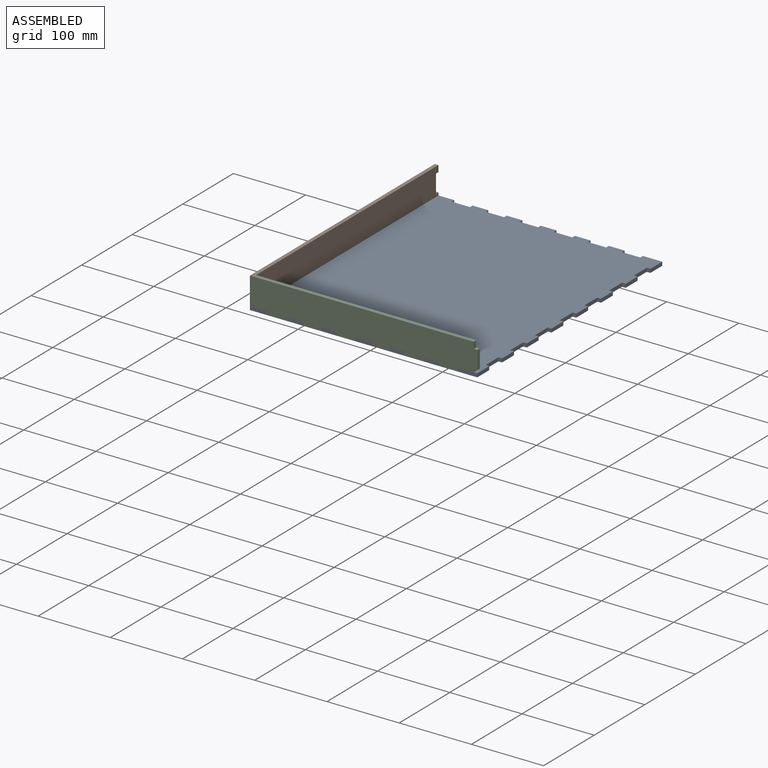
[diagram: assembled view]
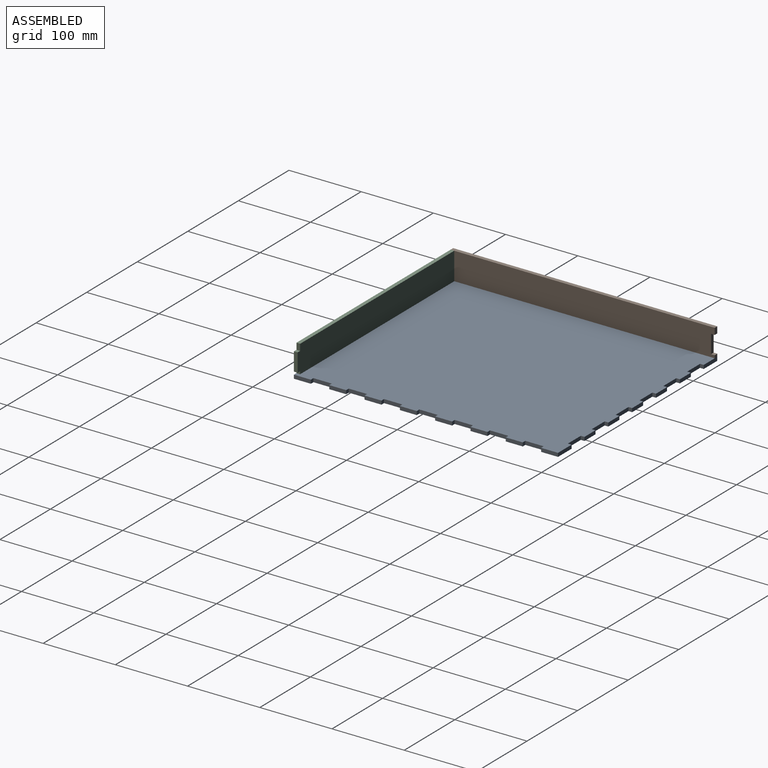
[diagram: assembled view, second angle]
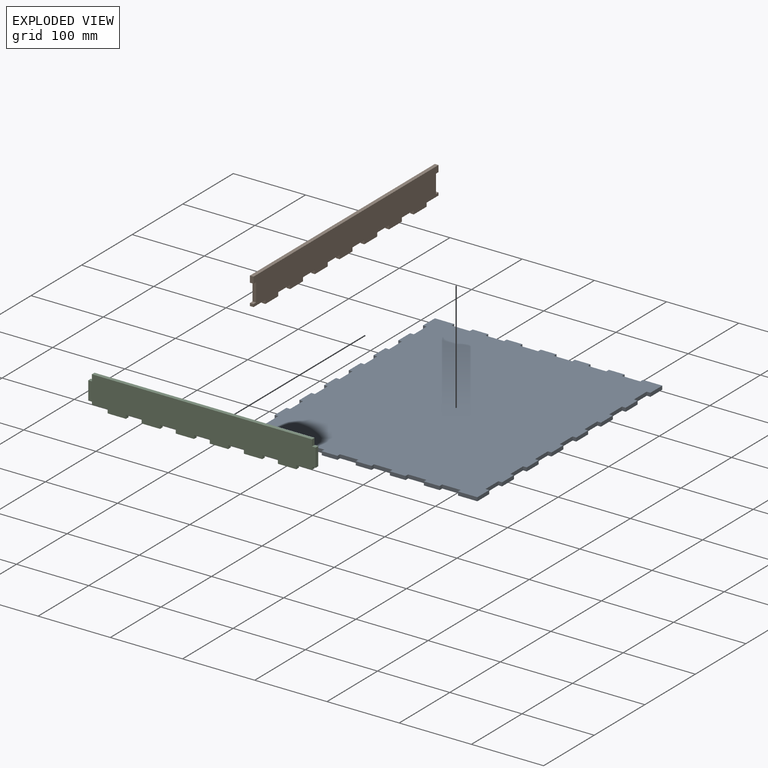
[diagram: exploded view]
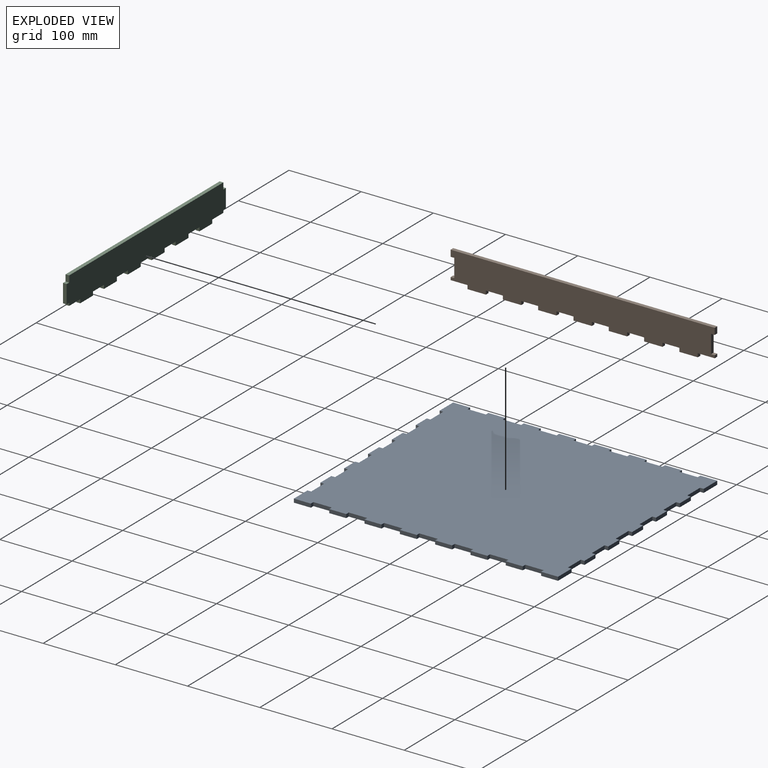
[diagram: exploded view, second angle]
ASSEMBLY  parts=3 mates=2
PART A: 110 faces, bbox 315x365.8x5.1 mm
  f0: plane 23.5x5.08mm, normal (-1,0,0), area 119.4mm2, adj f2,f3,f31,f109
  f1: plane 23.5x5.08mm, normal (1,0,0), area 119.4mm2, adj f2,f3,f27,f106
  f2: plane 365.76x314.96mm, normal (0,0,1), area 111844.9mm2, adj f0,f1,f4,f5,f6,f7,f8,f9
  f3: plane 365.76x314.96mm, normal (0,0,-1), area 111844.9mm2, adj f0,f1,f4,f5,f6,f7,f8,f9
  f4: plane 23.5x5.08mm, normal (-1,0,0), area 119.4mm2, adj f2,f3,f103,f107
  f5: plane 23.5x5.08mm, normal (1,0,0), area 119.4mm2, adj f2,f3,f100,f105
  f6: plane 23.5x5.08mm, normal (-1,0,0), area 119.4mm2, adj f2,f3,f97,f101
  f7: plane 23.5x5.08mm, normal (1,0,0), area 119.4mm2, adj f2,f3,f94,f99
  f8: plane 23.5x5.08mm, normal (-1,0,0), area 119.4mm2, adj f2,f3,f91,f95
  f9: plane 23.5x5.08mm, normal (1,0,0), area 119.4mm2, adj f2,f3,f88,f93
  f10: plane 23.5x5.08mm, normal (-1,0,0), area 119.4mm2, adj f2,f3,f85,f89
  f11: plane 23.5x5.08mm, normal (1,0,0), area 119.4mm2, adj f2,f3,f82,f87
  f12: plane 23.5x5.08mm, normal (-1,0,0), area 119.4mm2, adj f2,f3,f79,f83
  f13: plane 23.5x5.08mm, normal (1,0,0), area 119.4mm2, adj f2,f3,f76,f81
  f14: plane 23.5x5.08mm, normal (-1,0,0), area 119.4mm2, adj f2,f3,f73,f77
  f15: plane 23.5x5.08mm, normal (1,0,0), area 119.4mm2, adj f2,f3,f70,f75
  f16: plane 21.77x5.08mm, normal (0,-1,0), area 110.6mm2, adj f2,f3,f60,f67
  f17: plane 21.77x5.08mm, normal (0,1,0), area 110.6mm2, adj f2,f3,f56,f64
  f18: plane 21.77x5.08mm, normal (0,-1,0), area 110.6mm2, adj f2,f3,f54,f61
  f19: plane 21.77x5.08mm, normal (0,1,0), area 110.6mm2, adj f2,f3,f50,f58
  f20: plane 21.77x5.08mm, normal (0,-1,0), area 110.6mm2, adj f2,f3,f48,f55
  f21: plane 21.77x5.08mm, normal (0,1,0), area 110.6mm2, adj f2,f3,f44,f52
  f22: plane 21.77x5.08mm, normal (0,-1,0), area 110.6mm2, adj f2,f3,f42,f49
  f23: plane 21.77x5.08mm, normal (0,1,0), area 110.6mm2, adj f2,f3,f38,f46
  f24: plane 21.77x5.08mm, normal (0,-1,0), area 110.6mm2, adj f2,f3,f36,f43
  f25: plane 21.77x5.08mm, normal (0,1,0), area 110.6mm2, adj f2,f3,f32,f40
  f26: plane 26.85x5.08mm, normal (0,-1,0), area 136.4mm2, adj f2,f3,f30,f37
  f27: plane 26.85x5.08mm, normal (0,1,0), area 136.4mm2, adj f1,f2,f3,f34
  f28: plane 23.5x5.08mm, normal (-1,0,0), area 119.4mm2, adj f2,f3,f29,f71
  f29: plane 26.85x5.08mm, normal (0,-1,0), area 136.4mm2, adj f2,f3,f28,f66
  f30: plane 23.5x5.08mm, normal (1,0,0), area 119.4mm2, adj f2,f3,f26,f69
  f31: plane 26.85x5.08mm, normal (0,1,0), area 136.4mm2, adj f0,f2,f3,f62
  f32: plane 5.08x5.08mm, normal (1,0,0), area 25.8mm2, adj f2,f3,f25,f33
  f33: plane 25.4x5.08mm, normal (0,1,0), area 129mm2, adj f2,f3,f32,f34
  f34: plane 5.08x5.08mm, normal (-1,0,0), area 25.8mm2, adj f2,f3,f27,f33
  f35: plane 25.4x5.08mm, normal (0,-1,0), area 129mm2, adj f2,f3,f36,f37
  f36: plane 5.08x5.08mm, normal (1,0,0), area 25.8mm2, adj f2,f3,f24,f35
  f37: plane 5.08x5.08mm, normal (-1,0,0), area 25.8mm2, adj f2,f3,f26,f35
  f38: plane 5.08x5.08mm, normal (1,0,0), area 25.8mm2, adj f2,f3,f23,f39
  f39: plane 25.4x5.08mm, normal (0,1,0), area 129mm2, adj f2,f3,f38,f40
  f40: plane 5.08x5.08mm, normal (-1,0,0), area 25.8mm2, adj f2,f3,f25,f39
  f41: plane 25.4x5.08mm, normal (0,-1,0), area 129mm2, adj f2,f3,f42,f43
  f42: plane 5.08x5.08mm, normal (1,0,0), area 25.8mm2, adj f2,f3,f22,f41
  f43: plane 5.08x5.08mm, normal (-1,0,0), area 25.8mm2, adj f2,f3,f24,f41
  f44: plane 5.08x5.08mm, normal (1,0,0), area 25.8mm2, adj f2,f3,f21,f45
  f45: plane 25.4x5.08mm, normal (0,1,0), area 129mm2, adj f2,f3,f44,f46
  f46: plane 5.08x5.08mm, normal (-1,0,0), area 25.8mm2, adj f2,f3,f23,f45
  f47: plane 25.4x5.08mm, normal (0,-1,0), area 129mm2, adj f2,f3,f48,f49
  f48: plane 5.08x5.08mm, normal (1,0,0), area 25.8mm2, adj f2,f3,f20,f47
  f49: plane 5.08x5.08mm, normal (-1,0,0), area 25.8mm2, adj f2,f3,f22,f47
  f50: plane 5.08x5.08mm, normal (1,0,0), area 25.8mm2, adj f2,f3,f19,f51
  f51: plane 25.4x5.08mm, normal (0,1,0), area 129mm2, adj f2,f3,f50,f52
  f52: plane 5.08x5.08mm, normal (-1,0,0), area 25.8mm2, adj f2,f3,f21,f51
  f53: plane 25.4x5.08mm, normal (0,-1,0), area 129mm2, adj f2,f3,f54,f55
  f54: plane 5.08x5.08mm, normal (1,0,0), area 25.8mm2, adj f2,f3,f18,f53
  f55: plane 5.08x5.08mm, normal (-1,0,0), area 25.8mm2, adj f2,f3,f20,f53
  f56: plane 5.08x5.08mm, normal (1,0,0), area 25.8mm2, adj f2,f3,f17,f57
  f57: plane 25.4x5.08mm, normal (0,1,0), area 129mm2, adj f2,f3,f56,f58
  f58: plane 5.08x5.08mm, normal (-1,0,0), area 25.8mm2, adj f2,f3,f19,f57
  f59: plane 25.4x5.08mm, normal (0,-1,0), area 129mm2, adj f2,f3,f60,f61
  f60: plane 5.08x5.08mm, normal (1,0,0), area 25.8mm2, adj f2,f3,f16,f59
  f61: plane 5.08x5.08mm, normal (-1,0,0), area 25.8mm2, adj f2,f3,f18,f59
  f62: plane 5.08x5.08mm, normal (1,0,0), area 25.8mm2, adj f2,f3,f31,f63
  f63: plane 25.4x5.08mm, normal (0,1,0), area 129mm2, adj f2,f3,f62,f64
  f64: plane 5.08x5.08mm, normal (-1,0,0), area 25.8mm2, adj f2,f3,f17,f63
  f65: plane 25.4x5.08mm, normal (0,-1,0), area 129mm2, adj f2,f3,f66,f67
  f66: plane 5.08x5.08mm, normal (1,0,0), area 25.8mm2, adj f2,f3,f29,f65
  f67: plane 5.08x5.08mm, normal (-1,0,0), area 25.8mm2, adj f2,f3,f16,f65
  f68: plane 25.4x5.08mm, normal (1,0,0), area 129mm2, adj f2,f3,f69,f70
  f69: plane 5.08x5.08mm, normal (0,1,0), area 25.8mm2, adj f2,f3,f30,f68
  f70: plane 5.08x5.08mm, normal (0,-1,0), area 25.8mm2, adj f2,f3,f15,f68
  f71: plane 5.08x5.08mm, normal (0,1,0), area 25.8mm2, adj f2,f3,f28,f72
  f72: plane 25.4x5.08mm, normal (-1,0,0), area 129mm2, adj f2,f3,f71,f73
  f73: plane 5.08x5.08mm, normal (0,-1,0), area 25.8mm2, adj f2,f3,f14,f72
  f74: plane 25.4x5.08mm, normal (1,0,0), area 129mm2, adj f2,f3,f75,f76
  f75: plane 5.08x5.08mm, normal (0,1,0), area 25.8mm2, adj f2,f3,f15,f74
  f76: plane 5.08x5.08mm, normal (0,-1,0), area 25.8mm2, adj f2,f3,f13,f74
  f77: plane 5.08x5.08mm, normal (0,1,0), area 25.8mm2, adj f2,f3,f14,f78
  f78: plane 25.4x5.08mm, normal (-1,0,0), area 129mm2, adj f2,f3,f77,f79
  f79: plane 5.08x5.08mm, normal (0,-1,0), area 25.8mm2, adj f2,f3,f12,f78
  f80: plane 25.4x5.08mm, normal (1,0,0), area 129mm2, adj f2,f3,f81,f82
  f81: plane 5.08x5.08mm, normal (0,1,0), area 25.8mm2, adj f2,f3,f13,f80
  f82: plane 5.08x5.08mm, normal (0,-1,0), area 25.8mm2, adj f2,f3,f11,f80
  f83: plane 5.08x5.08mm, normal (0,1,0), area 25.8mm2, adj f2,f3,f12,f84
  f84: plane 25.4x5.08mm, normal (-1,0,0), area 129mm2, adj f2,f3,f83,f85
  f85: plane 5.08x5.08mm, normal (0,-1,0), area 25.8mm2, adj f2,f3,f10,f84
  f86: plane 25.4x5.08mm, normal (1,0,0), area 129mm2, adj f2,f3,f87,f88
  f87: plane 5.08x5.08mm, normal (0,1,0), area 25.8mm2, adj f2,f3,f11,f86
  f88: plane 5.08x5.08mm, normal (0,-1,0), area 25.8mm2, adj f2,f3,f9,f86
  f89: plane 5.08x5.08mm, normal (0,1,0), area 25.8mm2, adj f2,f3,f10,f90
  f90: plane 25.4x5.08mm, normal (-1,0,0), area 129mm2, adj f2,f3,f89,f91
  f91: plane 5.08x5.08mm, normal (0,-1,0), area 25.8mm2, adj f2,f3,f8,f90
  f92: plane 25.4x5.08mm, normal (1,0,0), area 129mm2, adj f2,f3,f93,f94
  f93: plane 5.08x5.08mm, normal (0,1,0), area 25.8mm2, adj f2,f3,f9,f92
  f94: plane 5.08x5.08mm, normal (0,-1,0), area 25.8mm2, adj f2,f3,f7,f92
  f95: plane 5.08x5.08mm, normal (0,1,0), area 25.8mm2, adj f2,f3,f8,f96
  f96: plane 25.4x5.08mm, normal (-1,0,0), area 129mm2, adj f2,f3,f95,f97
  f97: plane 5.08x5.08mm, normal (0,-1,0), area 25.8mm2, adj f2,f3,f6,f96
  f98: plane 25.4x5.08mm, normal (1,0,0), area 129mm2, adj f2,f3,f99,f100
  f99: plane 5.08x5.08mm, normal (0,1,0), area 25.8mm2, adj f2,f3,f7,f98
  f100: plane 5.08x5.08mm, normal (0,-1,0), area 25.8mm2, adj f2,f3,f5,f98
  f101: plane 5.08x5.08mm, normal (0,1,0), area 25.8mm2, adj f2,f3,f6,f102
  f102: plane 25.4x5.08mm, normal (-1,0,0), area 129mm2, adj f2,f3,f101,f103
  f103: plane 5.08x5.08mm, normal (0,-1,0), area 25.8mm2, adj f2,f3,f4,f102
  f104: plane 25.4x5.08mm, normal (1,0,0), area 129mm2, adj f2,f3,f105,f106
  f105: plane 5.08x5.08mm, normal (0,1,0), area 25.8mm2, adj f2,f3,f5,f104
  f106: plane 5.08x5.08mm, normal (0,-1,0), area 25.8mm2, adj f1,f2,f3,f104
  f107: plane 5.08x5.08mm, normal (0,1,0), area 25.8mm2, adj f2,f3,f4,f108
  f108: plane 25.4x5.08mm, normal (-1,0,0), area 129mm2, adj f2,f3,f107,f109
  f109: plane 5.08x5.08mm, normal (0,-1,0), area 25.8mm2, adj f0,f2,f3,f108
PART B: 42 faces, bbox 5.1x365.8x43.2 mm
  f0: plane 23.5x5.08mm, normal (0,0,-1), area 119.4mm2, adj f9,f10,f38,f39
  f1: plane 23.5x5.08mm, normal (0,0,-1), area 119.4mm2, adj f9,f10,f35,f36
  f2: plane 23.5x5.08mm, normal (0,0,-1), area 119.4mm2, adj f9,f10,f32,f33
  f3: plane 23.5x5.08mm, normal (0,0,-1), area 119.4mm2, adj f9,f10,f29,f30
  f4: plane 23.5x5.08mm, normal (0,0,-1), area 119.4mm2, adj f9,f10,f26,f27
  f5: plane 23.5x5.08mm, normal (0,0,-1), area 119.4mm2, adj f9,f10,f23,f24
  f6: plane 23.5x5.08mm, normal (0,0,-1), area 119.4mm2, adj f7,f9,f10,f21
  f7: plane 5.08x3.81mm, normal (0,-1,0), area 19.4mm2, adj f6,f9,f10,f18
  f8: plane 5.08x3.81mm, normal (0,1,0), area 19.4mm2, adj f9,f10,f12,f15
  f9: plane 365.76x43.18mm, normal (-1,0,0), area 14580.6mm2, adj f0,f1,f2,f3,f4,f5,f6,f7
  f10: plane 365.76x43.18mm, normal (1,0,0), area 14580.6mm2, adj f0,f1,f2,f3,f4,f5,f6,f7
  f11: plane 8.89x5.08mm, normal (0,-1,0), area 45.2mm2, adj f9,f10,f14,f20
  f12: plane 23.5x5.08mm, normal (0,0,-1), area 119.4mm2, adj f8,f9,f10,f41
  f13: plane 8.89x5.08mm, normal (0,1,0), area 45.2mm2, adj f9,f10,f14,f16
  f14: plane 365.76x5.08mm, normal (0,0,1), area 1858.1mm2, adj f9,f10,f11,f13
  f15: plane 5.08x5.08mm, normal (0,0,1), area 25.8mm2, adj f8,f9,f10,f17
  f16: plane 5.08x5.08mm, normal (0,0,-1), area 25.8mm2, adj f9,f10,f13,f17
  f17: plane 25.4x5.08mm, normal (0,1,0), area 129mm2, adj f9,f10,f15,f16
  f18: plane 5.08x5.08mm, normal (0,0,1), area 25.8mm2, adj f7,f9,f10,f19
  f19: plane 25.4x5.08mm, normal (0,-1,0), area 129mm2, adj f9,f10,f18,f20
  f20: plane 5.08x5.08mm, normal (0,0,-1), area 25.8mm2, adj f9,f10,f11,f19
  f21: plane 5.08x5.08mm, normal (0,-1,0), area 25.8mm2, adj f6,f9,f10,f22
  f22: plane 25.4x5.08mm, normal (0,0,-1), area 129mm2, adj f9,f10,f21,f23
  f23: plane 5.08x5.08mm, normal (0,1,0), area 25.8mm2, adj f5,f9,f10,f22
  f24: plane 5.08x5.08mm, normal (0,-1,0), area 25.8mm2, adj f5,f9,f10,f25
  f25: plane 25.4x5.08mm, normal (0,0,-1), area 129mm2, adj f9,f10,f24,f26
  f26: plane 5.08x5.08mm, normal (0,1,0), area 25.8mm2, adj f4,f9,f10,f25
  f27: plane 5.08x5.08mm, normal (0,-1,0), area 25.8mm2, adj f4,f9,f10,f28
  f28: plane 25.4x5.08mm, normal (0,0,-1), area 129mm2, adj f9,f10,f27,f29
  f29: plane 5.08x5.08mm, normal (0,1,0), area 25.8mm2, adj f3,f9,f10,f28
  f30: plane 5.08x5.08mm, normal (0,-1,0), area 25.8mm2, adj f3,f9,f10,f31
  f31: plane 25.4x5.08mm, normal (0,0,-1), area 129mm2, adj f9,f10,f30,f32
  f32: plane 5.08x5.08mm, normal (0,1,0), area 25.8mm2, adj f2,f9,f10,f31
  f33: plane 5.08x5.08mm, normal (0,-1,0), area 25.8mm2, adj f2,f9,f10,f34
  f34: plane 25.4x5.08mm, normal (0,0,-1), area 129mm2, adj f9,f10,f33,f35
  f35: plane 5.08x5.08mm, normal (0,1,0), area 25.8mm2, adj f1,f9,f10,f34
  f36: plane 5.08x5.08mm, normal (0,-1,0), area 25.8mm2, adj f1,f9,f10,f37
  f37: plane 25.4x5.08mm, normal (0,0,-1), area 129mm2, adj f9,f10,f36,f38
  f38: plane 5.08x5.08mm, normal (0,1,0), area 25.8mm2, adj f0,f9,f10,f37
  f39: plane 5.08x5.08mm, normal (0,-1,0), area 25.8mm2, adj f0,f9,f10,f40
  f40: plane 25.4x5.08mm, normal (0,0,-1), area 129mm2, adj f9,f10,f39,f41
  f41: plane 5.08x5.08mm, normal (0,1,0), area 25.8mm2, adj f9,f10,f12,f40
PART C: 38 faces, bbox 315x5.1x43.2 mm
  f0: plane 5.08x3.81mm, normal (-1,0,0), area 19.4mm2, adj f2,f12,f13,f37
  f1: plane 5.08x3.81mm, normal (1,0,0), area 19.4mm2, adj f9,f12,f13,f34
  f2: plane 21.77x5.08mm, normal (0,0,-1), area 110.6mm2, adj f0,f12,f13,f31
  f3: plane 21.77x5.08mm, normal (0,0,-1), area 110.6mm2, adj f12,f13,f28,f29
  f4: plane 21.77x5.08mm, normal (0,0,-1), area 110.6mm2, adj f12,f13,f25,f26
  f5: plane 21.77x5.08mm, normal (0,0,-1), area 110.6mm2, adj f12,f13,f22,f23
  f6: plane 21.77x5.08mm, normal (0,0,-1), area 110.6mm2, adj f12,f13,f19,f20
  f7: plane 21.77x5.08mm, normal (0,0,-1), area 110.6mm2, adj f12,f13,f16,f17
  f8: plane 8.89x5.08mm, normal (-1,0,0), area 45.2mm2, adj f11,f12,f13,f35
  f9: plane 21.77x5.08mm, normal (0,0,-1), area 110.6mm2, adj f1,f12,f13,f14
  f10: plane 8.89x5.08mm, normal (1,0,0), area 45.2mm2, adj f11,f12,f13,f33
  f11: plane 304.8x5.08mm, normal (0,0,1), area 1548.4mm2, adj f8,f10,f12,f13
  f12: plane 314.96x43.18mm, normal (0,-1,0), area 12645.1mm2, adj f0,f1,f2,f3,f4,f5,f6,f7
  f13: plane 314.96x43.18mm, normal (0,1,0), area 12645.1mm2, adj f0,f1,f2,f3,f4,f5,f6,f7
  f14: plane 5.08x5.08mm, normal (1,0,0), area 25.8mm2, adj f9,f12,f13,f15
  f15: plane 25.4x5.08mm, normal (0,0,-1), area 129mm2, adj f12,f13,f14,f16
  f16: plane 5.08x5.08mm, normal (-1,0,0), area 25.8mm2, adj f7,f12,f13,f15
  f17: plane 5.08x5.08mm, normal (1,0,0), area 25.8mm2, adj f7,f12,f13,f18
  f18: plane 25.4x5.08mm, normal (0,0,-1), area 129mm2, adj f12,f13,f17,f19
  f19: plane 5.08x5.08mm, normal (-1,0,0), area 25.8mm2, adj f6,f12,f13,f18
  f20: plane 5.08x5.08mm, normal (1,0,0), area 25.8mm2, adj f6,f12,f13,f21
  f21: plane 25.4x5.08mm, normal (0,0,-1), area 129mm2, adj f12,f13,f20,f22
  f22: plane 5.08x5.08mm, normal (-1,0,0), area 25.8mm2, adj f5,f12,f13,f21
  f23: plane 5.08x5.08mm, normal (1,0,0), area 25.8mm2, adj f5,f12,f13,f24
  f24: plane 25.4x5.08mm, normal (0,0,-1), area 129mm2, adj f12,f13,f23,f25
  f25: plane 5.08x5.08mm, normal (-1,0,0), area 25.8mm2, adj f4,f12,f13,f24
  f26: plane 5.08x5.08mm, normal (1,0,0), area 25.8mm2, adj f4,f12,f13,f27
  f27: plane 25.4x5.08mm, normal (0,0,-1), area 129mm2, adj f12,f13,f26,f28
  f28: plane 5.08x5.08mm, normal (-1,0,0), area 25.8mm2, adj f3,f12,f13,f27
  f29: plane 5.08x5.08mm, normal (1,0,0), area 25.8mm2, adj f3,f12,f13,f30
  f30: plane 25.4x5.08mm, normal (0,0,-1), area 129mm2, adj f12,f13,f29,f31
  f31: plane 5.08x5.08mm, normal (-1,0,0), area 25.8mm2, adj f2,f12,f13,f30
  f32: plane 25.4x5.08mm, normal (1,0,0), area 129mm2, adj f12,f13,f33,f34
  f33: plane 5.08x5.08mm, normal (0,0,1), area 25.8mm2, adj f10,f12,f13,f32
  f34: plane 5.08x5.08mm, normal (0,0,-1), area 25.8mm2, adj f1,f12,f13,f32
  f35: plane 5.08x5.08mm, normal (0,0,1), area 25.8mm2, adj f8,f12,f13,f36
  f36: plane 25.4x5.08mm, normal (-1,0,0), area 129mm2, adj f12,f13,f35,f37
  f37: plane 5.08x5.08mm, normal (0,0,-1), area 25.8mm2, adj f0,f12,f13,f36
PLACE A at identity fixed
PLACE B t=(30.48,0,-20.32)mm
PLACE C t=(0,30.48,-20.32)mm
MATE planar B.f6 <-> A.f2  axis (0,0,-1) through (25.4,25.4,5.08)mm
MATE planar B.f10 <-> C.f0  axis (1,0,0) through (30.48,25.4,5.08)mm
